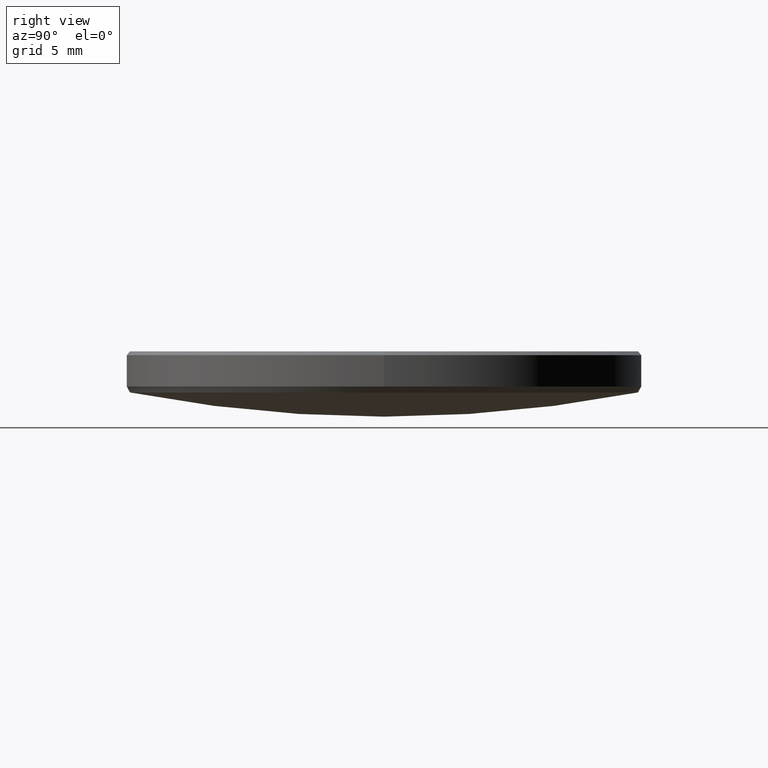
[diagram: clean part render]
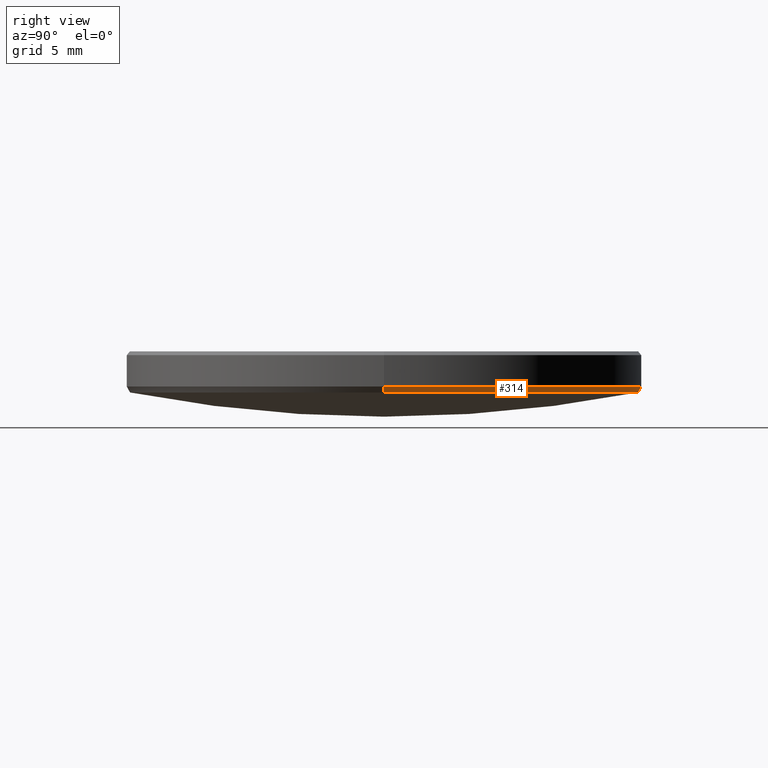
[diagram: same view with one face highlighted and labeled with its STEP entity id]
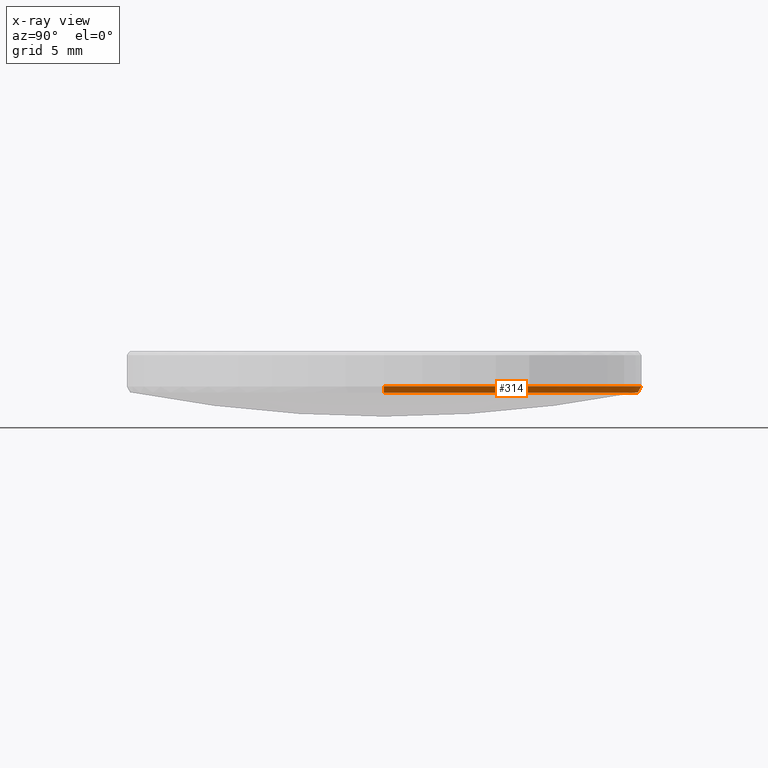
[diagram: x-ray of the same camera — body ghosted, the highlighted face saturated]
A machine part, right view. The second image highlights one B-rep face of the part: STEP entity #314.
The next image is the same camera in x-ray: the body ghosted, the highlighted face saturated — about 0% of this face is hidden behind the body in this view.
In plain terms, the highlighted conical surface has half-angle 33.931 deg.
Its self-contained STEP definition (entity closure, byte-faithful):
#4 = ORIENTED_EDGE ( 'NONE', *, *, #19, .F. ) ;
#9 = DIRECTION ( 'NONE',  ( 0.000000000000000000, 0.000000000000000000, -1.000000000000000000 ) ) ;
#16 = CIRCLE ( 'NONE', #59, 12.50395849586555030 ) ;
#19 = EDGE_CURVE ( 'NONE', #309, #52, #87, .T. ) ;
#43 = ORIENTED_EDGE ( 'NONE', *, *, #229, .F. ) ;
#51 = CONICAL_SURFACE ( 'NONE', #298, 12.69999999999999929, 0.5922108289621466071 ) ;
#52 = VERTEX_POINT ( 'NONE', #295 ) ;
#59 = AXIS2_PLACEMENT_3D ( 'NONE', #135, #9, #134 ) ;
#65 = CARTESIAN_POINT ( 'NONE',  ( -12.69999999999999929, 1.555301434917138433E-15, 4.253353967830220128 ) ) ;
#68 = EDGE_CURVE ( 'NONE', #116, #52, #299, .T. ) ;
#81 = DIRECTION ( 'NONE',  ( 0.000000000000000000, 0.000000000000000000, -1.000000000000000000 ) ) ;
#87 = CIRCLE ( 'NONE', #277, 12.69999999999999929 ) ;
#89 = DIRECTION ( 'NONE',  ( 1.000000000000000000, 0.000000000000000000, 0.000000000000000000 ) ) ;
#91 = CARTESIAN_POINT ( 'NONE',  ( 12.69999999999999929, 1.555301434917138433E-15, 4.253353967830220128 ) ) ;
#100 = VERTEX_POINT ( 'NONE', #303 ) ;
#108 = DIRECTION ( 'NONE',  ( 1.000000000000000000, 0.000000000000000000, 0.000000000000000000 ) ) ;
#112 = CARTESIAN_POINT ( 'NONE',  ( 0.000000000000000000, 0.000000000000000000, 4.253353967830220128 ) ) ;
#116 = VERTEX_POINT ( 'NONE', #276 ) ;
#118 = CIRCLE ( 'NONE', #290, 12.50395849586555030 ) ;
#121 = DIRECTION ( 'NONE',  ( 0.5581967294551084535, 0.000000000000000000, 0.8297086303188730971 ) ) ;
#133 = ORIENTED_EDGE ( 'NONE', *, *, #204, .F. ) ;
#134 = DIRECTION ( 'NONE',  ( 1.000000000000000000, 0.000000000000000000, 0.000000000000000000 ) ) ;
#135 = CARTESIAN_POINT ( 'NONE',  ( 0.000000000000000000, 0.000000000000000000, 3.961956115965656444 ) ) ;
#138 = CARTESIAN_POINT ( 'NONE',  ( 12.50395849586555030, 0.000000000000000000, 3.961956115965656444 ) ) ;
#144 = DIRECTION ( 'NONE',  ( -1.000000000000000000, 0.000000000000000000, 0.000000000000000000 ) ) ;
#170 = CARTESIAN_POINT ( 'NONE',  ( 12.69999999999999929, 0.000000000000000000, 4.253353967830220128 ) ) ;
#191 = VECTOR ( 'NONE', #121, 1000.000000000000000 ) ;
#201 = DIRECTION ( 'NONE',  ( -0.5581967294551084535, 6.835938380217195988E-17, 0.8297086303188730971 ) ) ;
#202 = LINE ( 'NONE', #170, #191 ) ;
#204 = EDGE_CURVE ( 'NONE', #213, #309, #202, .T. ) ;
#213 = VERTEX_POINT ( 'NONE', #138 ) ;
#217 = CARTESIAN_POINT ( 'NONE',  ( 0.000000000000000000, 0.000000000000000000, 4.253353967830220128 ) ) ;
#220 = VECTOR ( 'NONE', #201, 1000.000000000000000 ) ;
#229 = EDGE_CURVE ( 'NONE', #100, #213, #118, .T. ) ;
#241 = EDGE_LOOP ( 'NONE', ( #247, #256, #4, #133, #43 ) ) ;
#246 = DIRECTION ( 'NONE',  ( -0.000000000000000000, -0.000000000000000000, 1.000000000000000000 ) ) ;
#247 = ORIENTED_EDGE ( 'NONE', *, *, #253, .F. ) ;
#249 = DIRECTION ( 'NONE',  ( -0.000000000000000000, -0.000000000000000000, 1.000000000000000000 ) ) ;
#253 = EDGE_CURVE ( 'NONE', #116, #100, #16, .T. ) ;
#256 = ORIENTED_EDGE ( 'NONE', *, *, #68, .T. ) ;
#276 = CARTESIAN_POINT ( 'NONE',  ( -12.50395849586555030, 1.543297354890224221E-15, 3.961956115965656444 ) ) ;
#277 = AXIS2_PLACEMENT_3D ( 'NONE', #217, #249, #144 ) ;
#290 = AXIS2_PLACEMENT_3D ( 'NONE', #316, #81, #108 ) ;
#295 = CARTESIAN_POINT ( 'NONE',  ( -12.69999999999999929, 0.000000000000000000, 4.253353967830220128 ) ) ;
#298 = AXIS2_PLACEMENT_3D ( 'NONE', #112, #246, #89 ) ;
#299 = LINE ( 'NONE', #65, #220 ) ;
#303 = CARTESIAN_POINT ( 'NONE',  ( 0.000000000000000000, 12.50395849586554675, 3.961956115965656444 ) ) ;
#309 = VERTEX_POINT ( 'NONE', #91 ) ;
#314 = ADVANCED_FACE ( 'NONE', ( #325 ), #51, .T. ) ;
#316 = CARTESIAN_POINT ( 'NONE',  ( 0.000000000000000000, 0.000000000000000000, 3.961956115965656444 ) ) ;
#325 = FACE_OUTER_BOUND ( 'NONE', #241, .T. ) ;